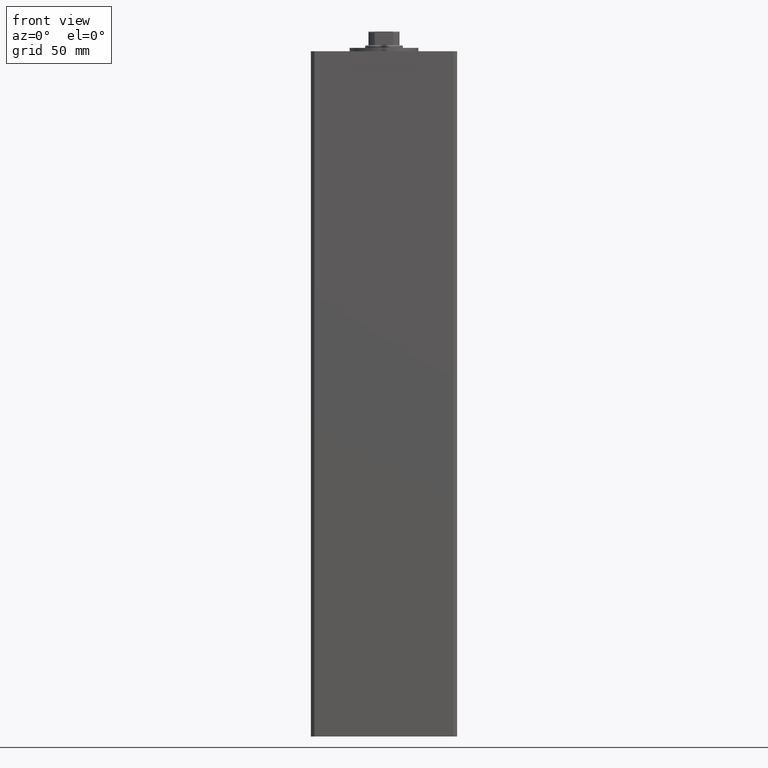
[diagram: clean part render]
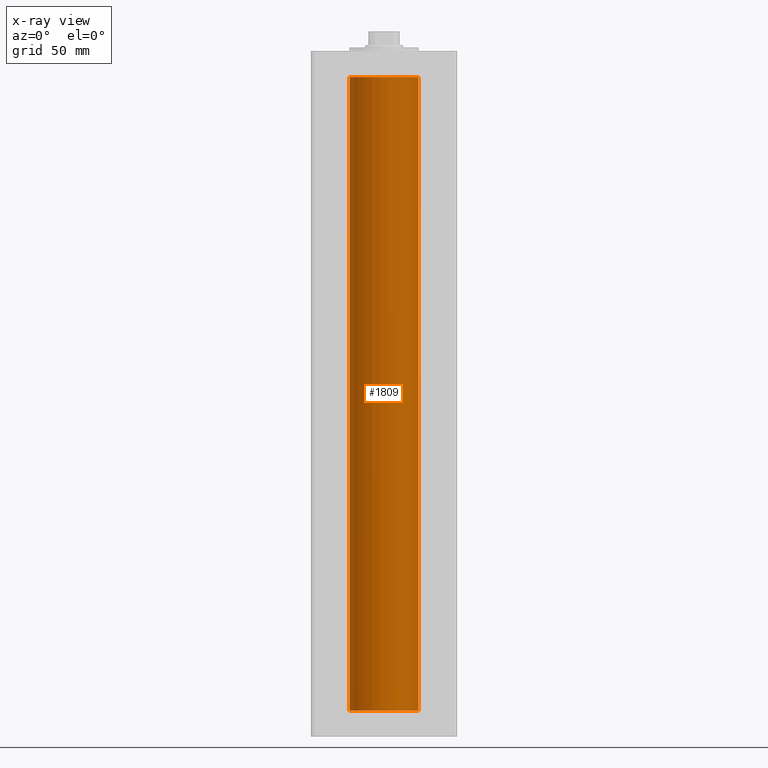
[diagram: x-ray — body ghosted, one internal face saturated and labeled with its STEP entity id]
A machine part, front view, then the same camera in x-ray: the body is ghosted and one INTERNAL B-rep face — a face not visible from any outside direction — is saturated and labeled: STEP entity #1809.
In plain terms, the highlighted cylindrical surface (edge-blend (fillet) strip) has radius 20 mm, axis along (-0, -0, -1).
Its self-contained STEP definition (entity closure, byte-faithful):
#1809 = ADVANCED_FACE ( 'NONE', ( #18974 ), #6350, .F. ) ;
#4999 = CIRCLE ( 'NONE', #42900, 20.00000000000000000 ) ;
#5281 = DIRECTION ( 'NONE',  ( -0.000000000000000000, 0.000000000000000000, 1.000000000000000000 ) ) ;
#6137 = AXIS2_PLACEMENT_3D ( 'NONE', #50385, #30346, #10801 ) ;
#6272 = CARTESIAN_POINT ( 'NONE',  ( -20.00000000000000000, 0.000000000000000000, 0.000000000000000000 ) ) ;
#6350 = CYLINDRICAL_SURFACE ( 'NONE', #6137, 20.00000000000000000 ) ;
#8108 = VECTOR ( 'NONE', #22488, 1000.000000000000000 ) ;
#8440 = CARTESIAN_POINT ( 'NONE',  ( 0.000000000000000000, 0.000000000000000000, 368.5000000000000000 ) ) ;
#10801 = DIRECTION ( 'NONE',  ( -1.000000000000000000, 0.000000000000000000, 0.000000000000000000 ) ) ;
#12745 = DIRECTION ( 'NONE',  ( -0.000000000000000000, -0.000000000000000000, -1.000000000000000000 ) ) ;
#13016 = EDGE_CURVE ( 'NONE', #18867, #48733, #32264, .T. ) ;
#13891 = VECTOR ( 'NONE', #12745, 1000.000000000000000 ) ;
#18258 = LINE ( 'NONE', #50440, #8108 ) ;
#18867 = VERTEX_POINT ( 'NONE', #25902 ) ;
#18974 = FACE_OUTER_BOUND ( 'NONE', #48173, .T. ) ;
#20932 = DIRECTION ( 'NONE',  ( -0.000000000000000000, 0.000000000000000000, 1.000000000000000000 ) ) ;
#22488 = DIRECTION ( 'NONE',  ( -0.000000000000000000, -0.000000000000000000, -1.000000000000000000 ) ) ;
#23133 = EDGE_CURVE ( 'NONE', #48733, #29973, #23847, .T. ) ;
#23847 = LINE ( 'NONE', #49142, #13891 ) ;
#25428 = CARTESIAN_POINT ( 'NONE',  ( 0.000000000000000000, 0.000000000000000000, 0.000000000000000000 ) ) ;
#25902 = CARTESIAN_POINT ( 'NONE',  ( -20.00000000000000000, 0.000000000000000000, 368.5000000000000000 ) ) ;
#26066 = EDGE_CURVE ( 'NONE', #18867, #32779, #18258, .T. ) ;
#29973 = VERTEX_POINT ( 'NONE', #36494 ) ;
#30346 = DIRECTION ( 'NONE',  ( -0.000000000000000000, -0.000000000000000000, -1.000000000000000000 ) ) ;
#32264 = CIRCLE ( 'NONE', #49952, 20.00000000000000000 ) ;
#32779 = VERTEX_POINT ( 'NONE', #6272 ) ;
#33585 = DIRECTION ( 'NONE',  ( 1.000000000000000000, 0.000000000000000000, 0.000000000000000000 ) ) ;
#36391 = EDGE_CURVE ( 'NONE', #32779, #29973, #4999, .T. ) ;
#36474 = ORIENTED_EDGE ( 'NONE', *, *, #36391, .F. ) ;
#36494 = CARTESIAN_POINT ( 'NONE',  ( 20.00000000000000000, 2.449293598294706513E-15, 0.000000000000000000 ) ) ;
#37535 = ORIENTED_EDGE ( 'NONE', *, *, #13016, .T. ) ;
#42900 = AXIS2_PLACEMENT_3D ( 'NONE', #25428, #20932, #33585 ) ;
#46810 = CARTESIAN_POINT ( 'NONE',  ( 20.00000000000000000, 2.449293598294706513E-15, 368.5000000000000000 ) ) ;
#48173 = EDGE_LOOP ( 'NONE', ( #37535, #49783, #36474, #48197 ) ) ;
#48197 = ORIENTED_EDGE ( 'NONE', *, *, #26066, .F. ) ;
#48733 = VERTEX_POINT ( 'NONE', #46810 ) ;
#48788 = DIRECTION ( 'NONE',  ( 1.000000000000000000, 0.000000000000000000, 0.000000000000000000 ) ) ;
#49142 = CARTESIAN_POINT ( 'NONE',  ( 20.00000000000000000, 2.449293598294706513E-15, 368.5000000000000000 ) ) ;
#49783 = ORIENTED_EDGE ( 'NONE', *, *, #23133, .T. ) ;
#49952 = AXIS2_PLACEMENT_3D ( 'NONE', #8440, #5281, #48788 ) ;
#50385 = CARTESIAN_POINT ( 'NONE',  ( 0.000000000000000000, 0.000000000000000000, 368.5000000000000000 ) ) ;
#50440 = CARTESIAN_POINT ( 'NONE',  ( -20.00000000000000000, 0.000000000000000000, 368.5000000000000000 ) ) ;